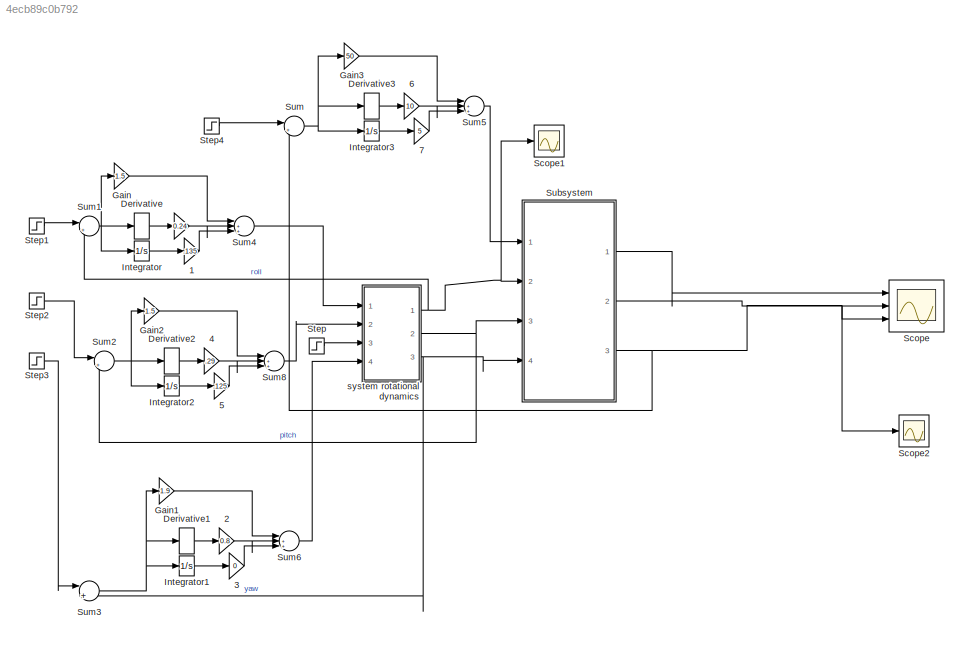
MODEL slx_4ecb89c0b792
KIND model
CONFIG AbsTol = auto
CONFIG FixedStep = auto
CONFIG MaxStep = auto
CONFIG MinStep = auto
CONFIG RelTol = 1e-3
CONFIG SampleTimeConstraint = Unconstrained
CONFIG Solver = VariableStepAuto
CONFIG SolverMode = Auto
CONFIG SolverName = VariableStepAuto
CONFIG StartTime = 0.0
CONFIG StopTime = 100
BLOCK [Gain]  
  Gain = 0.24
  OutDataTypeStr = Inherit: Inherit via internal rule
  ParamDataTypeStr = Inherit: Inherit via internal rule
  SaturateOnIntegerOverflow = off
BLOCK [Gain]  1
  Gain = .135
  OutDataTypeStr = Inherit: Inherit via internal rule
  ParamDataTypeStr = Inherit: Inherit via internal rule
  SaturateOnIntegerOverflow = off
BLOCK [Gain]  2
  Gain = 0.8
  OutDataTypeStr = Inherit: Inherit via internal rule
  ParamDataTypeStr = Inherit: Inherit via internal rule
  SaturateOnIntegerOverflow = off
BLOCK [Gain]  3
  Gain = 0
  OutDataTypeStr = Inherit: Inherit via internal rule
  ParamDataTypeStr = Inherit: Inherit via internal rule
  SaturateOnIntegerOverflow = off
BLOCK [Gain]  4
  Gain = .29
  OutDataTypeStr = Inherit: Inherit via internal rule
  ParamDataTypeStr = Inherit: Inherit via internal rule
  SaturateOnIntegerOverflow = off
BLOCK [Gain]  5
  Gain = .125
  OutDataTypeStr = Inherit: Inherit via internal rule
  ParamDataTypeStr = Inherit: Inherit via internal rule
  SaturateOnIntegerOverflow = off
BLOCK [Gain]  6
  Gain = 10
  OutDataTypeStr = Inherit: Inherit via internal rule
  ParamDataTypeStr = Inherit: Inherit via internal rule
  SaturateOnIntegerOverflow = off
BLOCK [Gain]  7
  Gain = 5
  OutDataTypeStr = Inherit: Inherit via internal rule
  ParamDataTypeStr = Inherit: Inherit via internal rule
  SaturateOnIntegerOverflow = off
BLOCK [Derivative] Derivative
BLOCK [Derivative] Derivative1
BLOCK [Derivative] Derivative2
BLOCK [Derivative] Derivative3
BLOCK [Gain] Gain
  Gain = 1.5
  OutDataTypeStr = Inherit: Inherit via internal rule
  ParamDataTypeStr = Inherit: Inherit via internal rule
  SaturateOnIntegerOverflow = off
BLOCK [Gain] Gain1
  Gain = 1.9
  OutDataTypeStr = Inherit: Inherit via internal rule
  ParamDataTypeStr = Inherit: Inherit via internal rule
  SaturateOnIntegerOverflow = off
BLOCK [Gain] Gain2
  Gain = 1.5
  OutDataTypeStr = Inherit: Inherit via internal rule
  ParamDataTypeStr = Inherit: Inherit via internal rule
  SaturateOnIntegerOverflow = off
BLOCK [Gain] Gain3
  Gain = 50
  OutDataTypeStr = Inherit: Inherit via internal rule
  ParamDataTypeStr = Inherit: Inherit via internal rule
  SaturateOnIntegerOverflow = off
BLOCK [Integrator] Integrator
  Ports = [1, 1]
BLOCK [Integrator] Integrator1
  Ports = [1, 1]
BLOCK [Integrator] Integrator2
  Ports = [1, 1]
BLOCK [Integrator] Integrator3
  Ports = [1, 1]
BLOCK [Scope] Scope
  NumInputPorts = 3
  Ports = [3]
  ScopeSpecificationString = Simulink.scopes.TimeScopeBlockCfg('CurrentConfiguration', extmgr.ConfigurationSet(extmgr.Configuration('Core','General UI',true),extmgr.Configuration('Core','Source UI',true),extmgr.Configuration('Sources','WiredSimulink',true),extmgr.Configuration('Visuals','Time Domain',true,'SerializedDisplays',{struct('MinYLimReal','-14592.71509','MaxYLimReal','3476.79401','YLabelReal','','MinYLimMag','   0.00...<+1414ch>
BLOCK [Scope] Scope1
  Ports = [1]
  ScopeSpecificationString = Simulink.scopes.TimeScopeBlockCfg('CurrentConfiguration', extmgr.ConfigurationSet(extmgr.Configuration('Core','General UI',true),extmgr.Configuration('Core','Source UI',true),extmgr.Configuration('Sources','WiredSimulink',true,'DataLoggingVariableName','ScopeData1'),extmgr.Configuration('Visuals','Time Domain',true,'SerializedDisplays',{struct('MinYLimReal','-0.03705','MaxYLimReal','0.33342','YLab...<+1409ch>
BLOCK [Scope] Scope2
  Ports = [1]
  ScopeSpecificationString = Simulink.scopes.TimeScopeBlockCfg('CurrentConfiguration', extmgr.ConfigurationSet(extmgr.Configuration('Core','General UI',true),extmgr.Configuration('Core','Source UI',true),extmgr.Configuration('Sources','WiredSimulink',true,'DataLoggingVariableName','ScopeData2'),extmgr.Configuration('Visuals','Time Domain',true,'SerializedDisplays',{struct('MinYLimReal','0.00000','MaxYLimReal','5.13008','YLabe...<+1462ch>
BLOCK [Step] Step
  After = 0
  SampleTime = 0
  Time = 0
BLOCK [Step] Step1
  After = 0.261667
  SampleTime = 0
  Time = 0
BLOCK [Step] Step2
  After = 0.0349065
  SampleTime = 0
  Time = 0
BLOCK [Step] Step3
  After = 0
  SampleTime = 0
  Time = 0
BLOCK [Step] Step4
  After = 5
  SampleTime = 0
  Time = 0
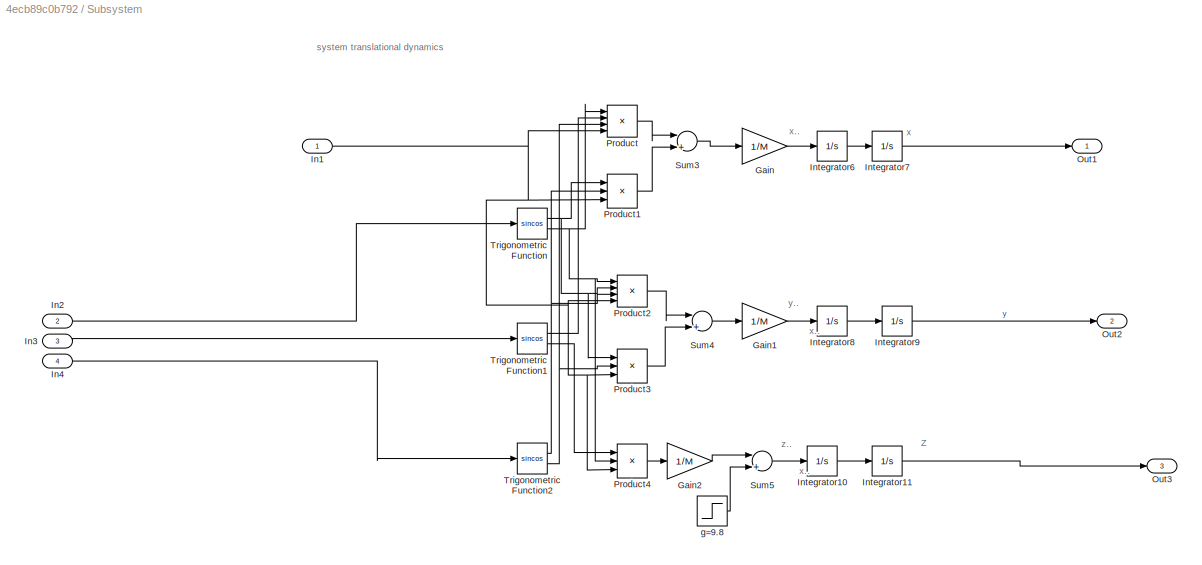
BLOCK [SubSystem] Subsystem
  Ports = [4, 3]
  RequestExecContextInheritance = off
  Variant = off
BLOCK [Gain] Subsystem/Gain
  Gain = 1/M
  OutDataTypeStr = Inherit: Inherit via internal rule
  ParamDataTypeStr = Inherit: Inherit via internal rule
  SaturateOnIntegerOverflow = off
BLOCK [Gain] Subsystem/Gain1
  Gain = 1/M
  OutDataTypeStr = Inherit: Inherit via internal rule
  ParamDataTypeStr = Inherit: Inherit via internal rule
  SaturateOnIntegerOverflow = off
BLOCK [Gain] Subsystem/Gain2
  Gain = 1/M
  OutDataTypeStr = Inherit: Inherit via internal rule
  ParamDataTypeStr = Inherit: Inherit via internal rule
  SaturateOnIntegerOverflow = off
BLOCK [Inport] Subsystem/In1
  IconDisplay = Port number
BLOCK [Inport] Subsystem/In2
  IconDisplay = Port number
  Port = 2
BLOCK [Inport] Subsystem/In3
  IconDisplay = Port number
  Port = 3
BLOCK [Inport] Subsystem/In4
  IconDisplay = Port number
  Port = 4
BLOCK [Integrator] Subsystem/Integrator10
  Ports = [1, 1]
BLOCK [Integrator] Subsystem/Integrator11
  Ports = [1, 1]
BLOCK [Integrator] Subsystem/Integrator6
  InitialCondition = 0.0
  Ports = [1, 1]
BLOCK [Integrator] Subsystem/Integrator7
  InitialCondition = 0.0
  Ports = [1, 1]
BLOCK [Integrator] Subsystem/Integrator8
  Ports = [1, 1]
BLOCK [Integrator] Subsystem/Integrator9
  Ports = [1, 1]
BLOCK [Outport] Subsystem/Out1
  IconDisplay = Port number
BLOCK [Outport] Subsystem/Out2
  IconDisplay = Port number
  Port = 2
BLOCK [Outport] Subsystem/Out3
  IconDisplay = Port number
  Port = 3
BLOCK [Product] Subsystem/Product
  InputSameDT = off
  Inputs = 4
  OutDataTypeStr = Inherit: Inherit via internal rule
  Ports = [4, 1]
  RndMeth = Floor
  SaturateOnIntegerOverflow = off
BLOCK [Product] Subsystem/Product1
  InputSameDT = off
  Inputs = 3
  OutDataTypeStr = Inherit: Inherit via internal rule
  Ports = [3, 1]
  RndMeth = Floor
  SaturateOnIntegerOverflow = off
BLOCK [Product] Subsystem/Product2
  InputSameDT = off
  Inputs = 4
  OutDataTypeStr = Inherit: Inherit via internal rule
  Ports = [4, 1]
  RndMeth = Floor
  SaturateOnIntegerOverflow = off
BLOCK [Product] Subsystem/Product3
  InputSameDT = off
  Inputs = 3
  OutDataTypeStr = Inherit: Inherit via internal rule
  Ports = [3, 1]
  RndMeth = Floor
  SaturateOnIntegerOverflow = off
BLOCK [Product] Subsystem/Product4
  InputSameDT = off
  Inputs = 3
  OutDataTypeStr = Inherit: Inherit via internal rule
  Ports = [3, 1]
  RndMeth = Floor
  SaturateOnIntegerOverflow = off
BLOCK [Sum] Subsystem/Sum3
  InputSameDT = off
  Inputs = |++
  OutDataTypeStr = Inherit: Inherit via internal rule
  Ports = [2, 1]
  SaturateOnIntegerOverflow = off
BLOCK [Sum] Subsystem/Sum4
  InputSameDT = off
  Inputs = |+-
  OutDataTypeStr = Inherit: Inherit via internal rule
  Ports = [2, 1]
  SaturateOnIntegerOverflow = off
BLOCK [Sum] Subsystem/Sum5
  InputSameDT = off
  Inputs = |+-
  OutDataTypeStr = Inherit: Inherit via internal rule
  Ports = [2, 1]
  SaturateOnIntegerOverflow = off
BLOCK [Trigonometry] Subsystem/Trigonometric Function
  Operator = sincos
  Ports = [1, 2]
BLOCK [Trigonometry] Subsystem/Trigonometric Function1
  Operator = sincos
  Ports = [1, 2]
BLOCK [Trigonometry] Subsystem/Trigonometric Function2
  Operator = sincos
  Ports = [1, 2]
BLOCK [Step] Subsystem/g=9.8
  After = 9.81
  SampleTime = 0
  Time = 0
BLOCK [Sum] Sum
  IconShape = round
  InputSameDT = off
  Inputs = |+-
  OutDataTypeStr = Inherit: Inherit via internal rule
  Ports = [2, 1]
  SaturateOnIntegerOverflow = off
BLOCK [Sum] Sum1
  IconShape = round
  InputSameDT = off
  Inputs = |+-
  OutDataTypeStr = Inherit: Inherit via internal rule
  Ports = [2, 1]
  SaturateOnIntegerOverflow = off
BLOCK [Sum] Sum2
  IconShape = round
  InputSameDT = off
  Inputs = |+-
  OutDataTypeStr = Inherit: Inherit via internal rule
  Ports = [2, 1]
  SaturateOnIntegerOverflow = off
BLOCK [Sum] Sum3
  IconShape = round
  InputSameDT = off
  Inputs = |+-
  OutDataTypeStr = Inherit: Inherit via internal rule
  Ports = [2, 1]
  SaturateOnIntegerOverflow = off
BLOCK [Sum] Sum4
  IconShape = round
  InputSameDT = off
  Inputs = |+++
  OutDataTypeStr = Inherit: Inherit via internal rule
  Ports = [3, 1]
  SaturateOnIntegerOverflow = off
BLOCK [Sum] Sum5
  IconShape = round
  InputSameDT = off
  Inputs = |+++
  OutDataTypeStr = Inherit: Inherit via internal rule
  Ports = [3, 1]
  SaturateOnIntegerOverflow = off
BLOCK [Sum] Sum6
  IconShape = round
  InputSameDT = off
  Inputs = |+++
  OutDataTypeStr = Inherit: Inherit via internal rule
  Ports = [3, 1]
  SaturateOnIntegerOverflow = off
BLOCK [Sum] Sum8
  IconShape = round
  InputSameDT = off
  Inputs = |+++
  OutDataTypeStr = Inherit: Inherit via internal rule
  Ports = [3, 1]
  SaturateOnIntegerOverflow = off
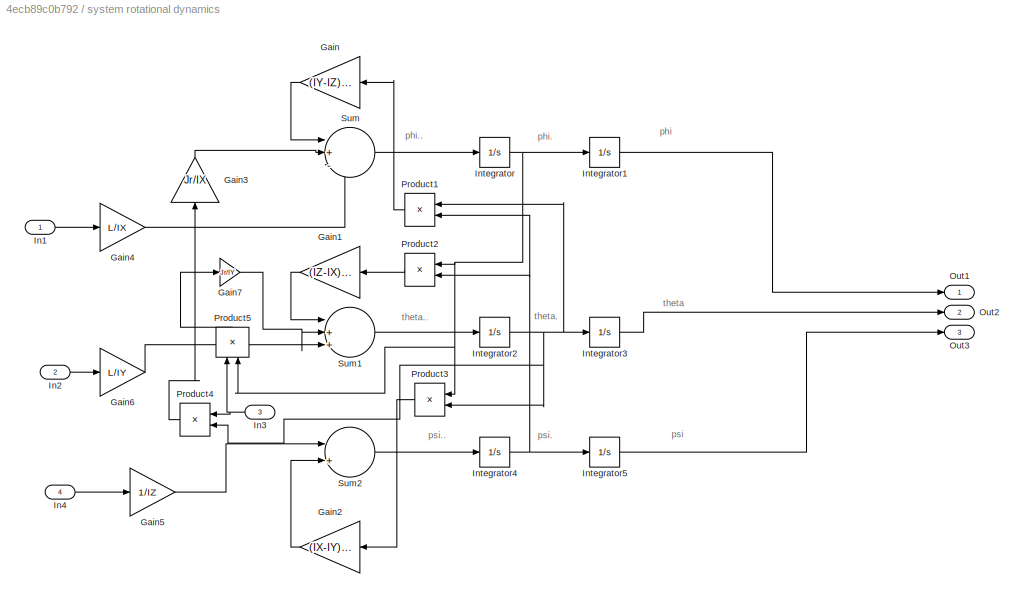
BLOCK [SubSystem] system rotational dynamics
  Ports = [4, 3]
  RequestExecContextInheritance = off
  Variant = off
BLOCK [Gain] system rotational dynamics/Gain
  Gain = (IY-IZ)/IX
  OutDataTypeStr = Inherit: Inherit via internal rule
  ParamDataTypeStr = Inherit: Inherit via internal rule
  SaturateOnIntegerOverflow = off
BLOCK [Gain] system rotational dynamics/Gain1
  Gain = (IZ-IX)/IY
  OutDataTypeStr = Inherit: Inherit via internal rule
  ParamDataTypeStr = Inherit: Inherit via internal rule
  SaturateOnIntegerOverflow = off
BLOCK [Gain] system rotational dynamics/Gain2
  Gain = (IX-IY)/IZ
  OutDataTypeStr = Inherit: Inherit via internal rule
  ParamDataTypeStr = Inherit: Inherit via internal rule
  SaturateOnIntegerOverflow = off
BLOCK [Gain] system rotational dynamics/Gain3
  Gain = Jr/IX
  OutDataTypeStr = Inherit: Inherit via internal rule
  ParamDataTypeStr = Inherit: Inherit via internal rule
  SaturateOnIntegerOverflow = off
BLOCK [Gain] system rotational dynamics/Gain4
  Gain = L/IX
  OutDataTypeStr = Inherit: Inherit via internal rule
  ParamDataTypeStr = Inherit: Inherit via internal rule
  SaturateOnIntegerOverflow = off
BLOCK [Gain] system rotational dynamics/Gain5
  Gain = 1/IZ
  OutDataTypeStr = Inherit: Inherit via internal rule
  ParamDataTypeStr = Inherit: Inherit via internal rule
  SaturateOnIntegerOverflow = off
BLOCK [Gain] system rotational dynamics/Gain6
  Gain = L/IY
  OutDataTypeStr = Inherit: Inherit via internal rule
  ParamDataTypeStr = Inherit: Inherit via internal rule
  SaturateOnIntegerOverflow = off
BLOCK [Gain] system rotational dynamics/Gain7
  Gain = Jr/IY
  OutDataTypeStr = Inherit: Inherit via internal rule
  ParamDataTypeStr = Inherit: Inherit via internal rule
  SaturateOnIntegerOverflow = off
BLOCK [Inport] system rotational dynamics/In1
  IconDisplay = Port number
BLOCK [Inport] system rotational dynamics/In2
  IconDisplay = Port number
  Port = 2
BLOCK [Inport] system rotational dynamics/In3
  IconDisplay = Port number
  Port = 3
BLOCK [Inport] system rotational dynamics/In4
  IconDisplay = Port number
  Port = 4
BLOCK [Integrator] system rotational dynamics/Integrator
  InitialCondition = 0.0
  Ports = [1, 1]
BLOCK [Integrator] system rotational dynamics/Integrator1
  InitialCondition = 0.0
  Ports = [1, 1]
BLOCK [Integrator] system rotational dynamics/Integrator2
  InitialCondition = 0.0
  Ports = [1, 1]
BLOCK [Integrator] system rotational dynamics/Integrator3
  InitialCondition = 0.0
  Ports = [1, 1]
BLOCK [Integrator] system rotational dynamics/Integrator4
  InitialCondition = 0.0
  Ports = [1, 1]
BLOCK [Integrator] system rotational dynamics/Integrator5
  InitialCondition = 0.0
  Ports = [1, 1]
BLOCK [Outport] system rotational dynamics/Out1
  IconDisplay = Port number
BLOCK [Outport] system rotational dynamics/Out2
  IconDisplay = Port number
  Port = 2
BLOCK [Outport] system rotational dynamics/Out3
  IconDisplay = Port number
  Port = 3
BLOCK [Product] system rotational dynamics/Product1
  InputSameDT = off
  OutDataTypeStr = Inherit: Inherit via internal rule
  Ports = [2, 1]
  RndMeth = Floor
  SaturateOnIntegerOverflow = off
BLOCK [Product] system rotational dynamics/Product2
  InputSameDT = off
  OutDataTypeStr = Inherit: Inherit via internal rule
  Ports = [2, 1]
  RndMeth = Floor
  SaturateOnIntegerOverflow = off
BLOCK [Product] system rotational dynamics/Product3
  InputSameDT = off
  OutDataTypeStr = Inherit: Inherit via internal rule
  Ports = [2, 1]
  RndMeth = Floor
  SaturateOnIntegerOverflow = off
BLOCK [Product] system rotational dynamics/Product4
  InputSameDT = off
  OutDataTypeStr = Inherit: Inherit via internal rule
  Ports = [2, 1]
  RndMeth = Floor
  SaturateOnIntegerOverflow = off
BLOCK [Product] system rotational dynamics/Product5
  InputSameDT = off
  OutDataTypeStr = Inherit: Inherit via internal rule
  Ports = [2, 1]
  RndMeth = Floor
  SaturateOnIntegerOverflow = off
BLOCK [Sum] system rotational dynamics/Sum
  IconShape = round
  InputSameDT = off
  Inputs = |+-+
  OutDataTypeStr = Inherit: Inherit via internal rule
  Ports = [3, 1]
  SaturateOnIntegerOverflow = off
BLOCK [Sum] system rotational dynamics/Sum1
  IconShape = round
  InputSameDT = off
  Inputs = |+++
  OutDataTypeStr = Inherit: Inherit via internal rule
  Ports = [3, 1]
  SaturateOnIntegerOverflow = off
BLOCK [Sum] system rotational dynamics/Sum2
  IconShape = round
  InputSameDT = off
  Inputs = |++
  OutDataTypeStr = Inherit: Inherit via internal rule
  Ports = [2, 1]
  SaturateOnIntegerOverflow = off
ANNOTATION Subsystem: Z
ANNOTATION Subsystem: system translational dynamics
ANNOTATION Subsystem: x
ANNOTATION Subsystem: x..
ANNOTATION Subsystem: y..
ANNOTATION Subsystem: z..
ANNOTATION system rotational dynamics: phi..
ANNOTATION system rotational dynamics: phi.
ANNOTATION system rotational dynamics: phi
ANNOTATION system rotational dynamics: psi
ANNOTATION system rotational dynamics: psi.
ANNOTATION system rotational dynamics: psi..
ANNOTATION system rotational dynamics: theta
ANNOTATION system rotational dynamics: theta.
ANNOTATION system rotational dynamics: theta..
LINE  1:1 -> Sum4:3
LINE  2:1 -> Sum6:2
LINE  3:1 -> Sum6:3
LINE  4:1 -> Sum8:2
LINE  5:1 -> Sum8:3
LINE  6:1 -> Sum5:2
LINE  7:1 -> Sum5:3
LINE  :1 -> Sum4:2
LINE Derivative1:1 ->  2:1
LINE Derivative2:1 ->  4:1
LINE Derivative3:1 ->  6:1
LINE Derivative:1 ->  :1
LINE Gain1:1 -> Sum6:1
LINE Gain2:1 -> Sum8:1
LINE Gain3:1 -> Sum5:1
LINE Gain:1 -> Sum4:1
LINE Integrator1:1 ->  3:1
LINE Integrator2:1 ->  5:1
LINE Integrator3:1 ->  7:1
LINE Integrator:1 ->  1:1
LINE Step1:1 -> Sum1:1
LINE Step2:1 -> Sum2:1
LINE Step3:1 -> Sum3:1
LINE Step4:1 -> Sum:1
LINE Step:1 -> system rotational dynamics:3
LINE Subsystem/Gain1:1 -> Subsystem/Integrator8:1
LINE Subsystem/Gain2:1 -> Subsystem/Sum5:1
LINE Subsystem/Gain:1 -> Subsystem/Integrator6:1
NET Subsystem/In1:1 -> Subsystem/Product1:3, Subsystem/Product2:4, Subsystem/Product3:3, Subsystem/Product4:3, Subsystem/Product:4
LINE Subsystem/In2:1 -> Subsystem/Trigonometric Function:1
LINE Subsystem/In3:1 -> Subsystem/Trigonometric Function1:1
LINE Subsystem/In4:1 -> Subsystem/Trigonometric Function2:1
LINE Subsystem/Integrator10:1 -> Subsystem/Integrator11:1
LINE Subsystem/Integrator11:1 -> Subsystem/Out3:1
LINE Subsystem/Integrator6:1 -> Subsystem/Integrator7:1
LINE Subsystem/Integrator7:1 -> Subsystem/Out1:1
LINE Subsystem/Integrator8:1 -> Subsystem/Integrator9:1
LINE Subsystem/Integrator9:1 -> Subsystem/Out2:1
LINE Subsystem/Product1:1 -> Subsystem/Sum3:2
LINE Subsystem/Product2:1 -> Subsystem/Sum4:1
LINE Subsystem/Product3:1 -> Subsystem/Sum4:2
LINE Subsystem/Product4:1 -> Subsystem/Gain2:1
LINE Subsystem/Product:1 -> Subsystem/Sum3:1
LINE Subsystem/Sum3:1 -> Subsystem/Gain:1
LINE Subsystem/Sum4:1 -> Subsystem/Gain1:1
LINE Subsystem/Sum5:1 -> Subsystem/Integrator10:1
LINE Subsystem/Trigonometric Function1:1 -> Subsystem/Product:2
LINE Subsystem/Trigonometric Function1:2 -> Subsystem/Product4:1
NET Subsystem/Trigonometric Function2:1 -> Subsystem/Product1:2, Subsystem/Product2:3
NET Subsystem/Trigonometric Function2:2 -> Subsystem/Product3:2, Subsystem/Product:3
NET Subsystem/Trigonometric Function:1 -> Subsystem/Product1:1, Subsystem/Product2:2, Subsystem/Product3:1
NET Subsystem/Trigonometric Function:2 -> Subsystem/Product2:1, Subsystem/Product4:2, Subsystem/Product:1
LINE Subsystem/g=9.8:1 -> Subsystem/Sum5:2
LINE Subsystem:1 -> Scope:1
LINE Subsystem:2 -> Scope:2
NET Subsystem:3 -> Scope2:1, Scope:3, Sum:2
NET Sum1:1 -> Derivative:1, Gain:1, Integrator:1
NET Sum2:1 -> Derivative2:1, Gain2:1, Integrator2:1
NET Sum3:1 -> Derivative1:1, Gain1:1, Integrator1:1
LINE Sum4:1 -> system rotational dynamics:1
LINE Sum5:1 -> Subsystem:1
LINE Sum6:1 -> system rotational dynamics:4
LINE Sum8:1 -> system rotational dynamics:2
NET Sum:1 -> Derivative3:1, Gain3:1, Integrator3:1
LINE system rotational dynamics/Gain1:1 -> system rotational dynamics/Sum1:1
LINE system rotational dynamics/Gain2:1 -> system rotational dynamics/Sum2:2
LINE system rotational dynamics/Gain3:1 -> system rotational dynamics/Sum:2
LINE system rotational dynamics/Gain4:1 -> system rotational dynamics/Sum:3
LINE system rotational dynamics/Gain5:1 -> system rotational dynamics/Sum2:1
LINE system rotational dynamics/Gain6:1 -> system rotational dynamics/Sum1:3
LINE system rotational dynamics/Gain7:1 -> system rotational dynamics/Sum1:2
LINE system rotational dynamics/Gain:1 -> system rotational dynamics/Sum:1
LINE system rotational dynamics/In1:1 -> system rotational dynamics/Gain4:1
LINE system rotational dynamics/In2:1 -> system rotational dynamics/Gain6:1
NET system rotational dynamics/In3:1 -> system rotational dynamics/Product4:1, system rotational dynamics/Product5:1
LINE system rotational dynamics/In4:1 -> system rotational dynamics/Gain5:1
LINE system rotational dynamics/Integrator1:1 -> system rotational dynamics/Out1:1
NET system rotational dynamics/Integrator2:1 -> system rotational dynamics/Integrator3:1, system rotational dynamics/Product1:1, system rotational dynamics/Product3:2, system rotational dynamics/Product4:2
LINE system rotational dynamics/Integrator3:1 -> system rotational dynamics/Out2:1
NET system rotational dynamics/Integrator4:1 -> system rotational dynamics/Integrator5:1, system rotational dynamics/Product1:2, system rotational dynamics/Product2:2
LINE system rotational dynamics/Integrator5:1 -> system rotational dynamics/Out3:1
NET system rotational dynamics/Integrator:1 -> system rotational dynamics/Integrator1:1, system rotational dynamics/Product2:1, system rotational dynamics/Product3:1, system rotational dynamics/Product5:2
LINE system rotational dynamics/Product1:1 -> system rotational dynamics/Gain:1
LINE system rotational dynamics/Product2:1 -> system rotational dynamics/Gain1:1
LINE system rotational dynamics/Product3:1 -> system rotational dynamics/Gain2:1
LINE system rotational dynamics/Product4:1 -> system rotational dynamics/Gain3:1
LINE system rotational dynamics/Product5:1 -> system rotational dynamics/Gain7:1
LINE system rotational dynamics/Sum1:1 -> system rotational dynamics/Integrator2:1
LINE system rotational dynamics/Sum2:1 -> system rotational dynamics/Integrator4:1
LINE system rotational dynamics/Sum:1 -> system rotational dynamics/Integrator:1
NET system rotational dynamics:1 -> Scope1:1, Subsystem:2, Sum1:2
NET system rotational dynamics:2 -> Subsystem:3, Sum2:2
NET system rotational dynamics:3 -> Subsystem:4, Sum3:2
note: NET lines group one-source signal fan-out (src -> all destinations, sorted); 1:1 wires keep LINE
